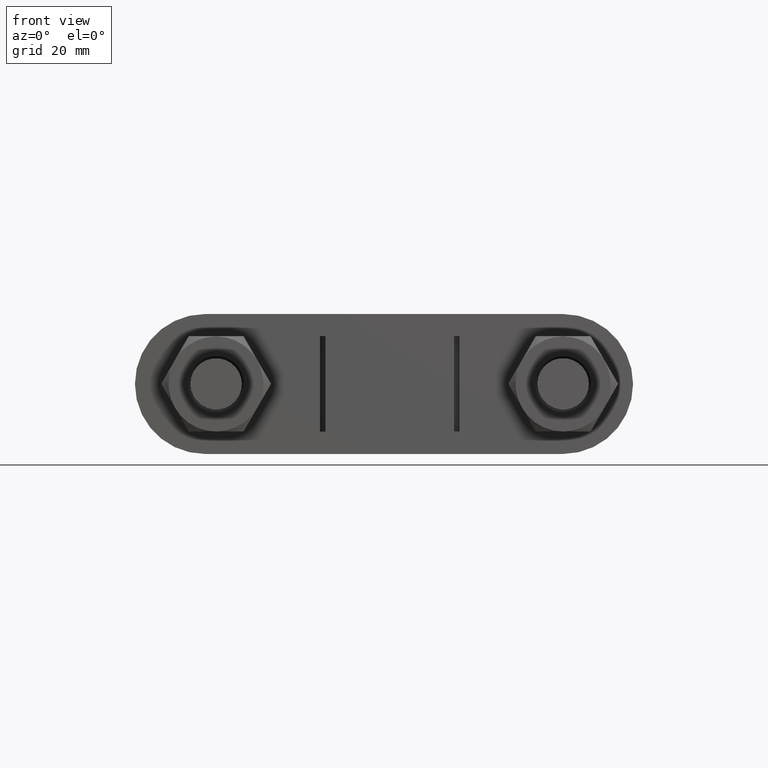
[diagram: clean part render]
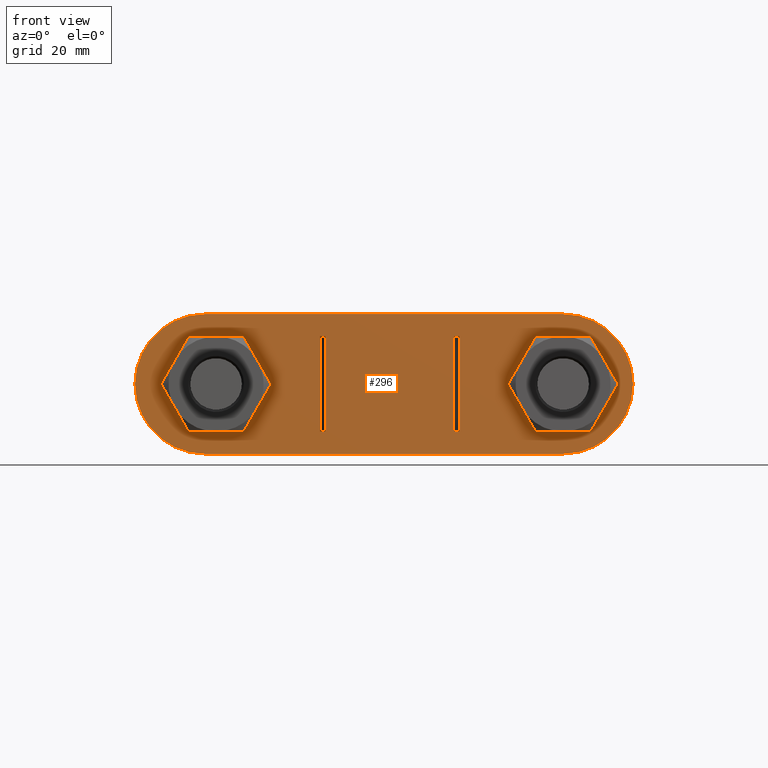
[diagram: same view with one face highlighted and labeled with its STEP entity id]
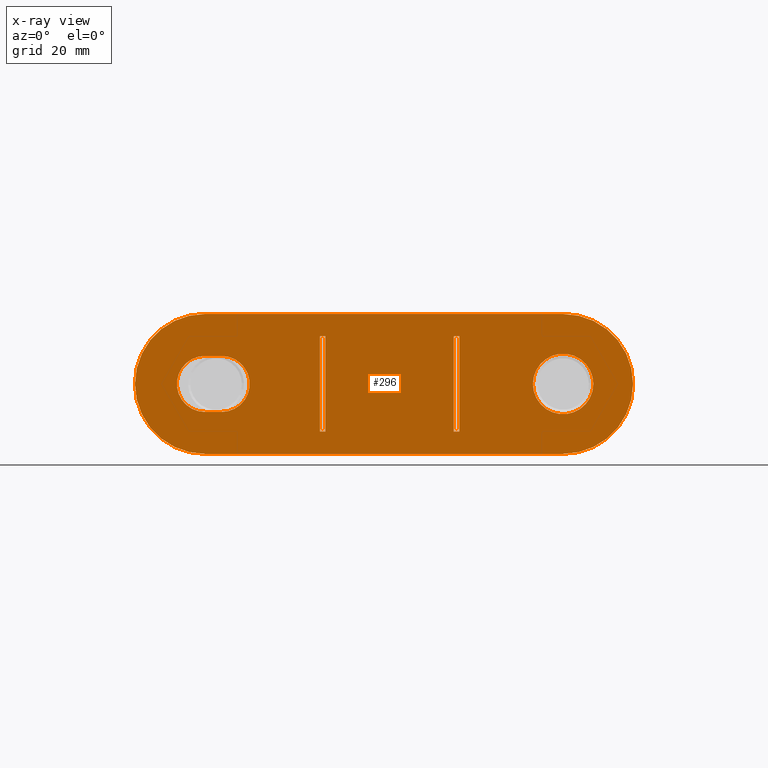
[diagram: x-ray of the same camera — body ghosted, the highlighted face saturated]
A machine part, front view. The second image highlights one B-rep face of the part: STEP entity #296.
The next image is the same camera in x-ray: the body ghosted, the highlighted face saturated — about 0% of this face is hidden behind the body in this view.
In plain terms, the highlighted planar face has unit normal (-0, 1, 0).
Its self-contained STEP definition (entity closure, byte-faithful):
#296 = ADVANCED_FACE( '', ( #445, #446, #447, #448, #449 ), #450, .F. );
#445 = FACE_BOUND( '', #1373, .T. );
#446 = FACE_OUTER_BOUND( '', #1374, .T. );
#447 = FACE_BOUND( '', #1375, .T. );
#448 = FACE_BOUND( '', #1376, .T. );
#449 = FACE_BOUND( '', #1377, .T. );
#450 = PLANE( '', #1378 );
#1373 = EDGE_LOOP( '', ( #1748, #1749, #1750, #1751 ) );
#1374 = EDGE_LOOP( '', ( #1752, #1753, #1754, #1755, #1756, #1757 ) );
#1375 = EDGE_LOOP( '', ( #1758 ) );
#1376 = EDGE_LOOP( '', ( #1759, #1760, #1761, #1762 ) );
#1377 = EDGE_LOOP( '', ( #1763, #1764, #1765, #1766 ) );
#1378 = AXIS2_PLACEMENT_3D( '', #1767, #1768, #1769 );
#1748 = ORIENTED_EDGE( '', *, *, #2427, .F. );
#1749 = ORIENTED_EDGE( '', *, *, #2428, .T. );
#1750 = ORIENTED_EDGE( '', *, *, #2429, .T. );
#1751 = ORIENTED_EDGE( '', *, *, #2430, .F. );
#1752 = ORIENTED_EDGE( '', *, *, #2431, .F. );
#1753 = ORIENTED_EDGE( '', *, *, #2432, .F. );
#1754 = ORIENTED_EDGE( '', *, *, #2433, .F. );
#1755 = ORIENTED_EDGE( '', *, *, #2434, .F. );
#1756 = ORIENTED_EDGE( '', *, *, #2435, .F. );
#1757 = ORIENTED_EDGE( '', *, *, #2436, .F. );
#1758 = ORIENTED_EDGE( '', *, *, #2437, .T. );
#1759 = ORIENTED_EDGE( '', *, *, #2438, .F. );
#1760 = ORIENTED_EDGE( '', *, *, #2439, .F. );
#1761 = ORIENTED_EDGE( '', *, *, #2440, .F. );
#1762 = ORIENTED_EDGE( '', *, *, #2441, .F. );
#1763 = ORIENTED_EDGE( '', *, *, #2442, .T. );
#1764 = ORIENTED_EDGE( '', *, *, #2443, .T. );
#1765 = ORIENTED_EDGE( '', *, *, #2444, .F. );
#1766 = ORIENTED_EDGE( '', *, *, #2445, .F. );
#1767 = CARTESIAN_POINT( '', ( -33.0000000000001, 29.1999999999912, 3.74627066098894E-007 ) );
#1768 = DIRECTION( '', ( -2.57567788524008E-013, 1.00000000000000, 2.67213857002862E-013 ) );
#1769 = DIRECTION( '', ( 1.13523593026117E-008, -2.67213854078860E-013, 1.00000000000000 ) );
#2427 = EDGE_CURVE( '', #2693, #2694, #2695, .T. );
#2428 = EDGE_CURVE( '', #2693, #2696, #2697, .T. );
#2429 = EDGE_CURVE( '', #2696, #2698, #2699, .T. );
#2430 = EDGE_CURVE( '', #2694, #2698, #2700, .T. );
#2431 = EDGE_CURVE( '', #2701, #2702, #2703, .T. );
#2432 = EDGE_CURVE( '', #2704, #2701, #2705, .T. );
#2433 = EDGE_CURVE( '', #2706, #2704, #2707, .T. );
#2434 = EDGE_CURVE( '', #2708, #2706, #2709, .T. );
#2435 = EDGE_CURVE( '', #2710, #2708, #2711, .T. );
#2436 = EDGE_CURVE( '', #2702, #2710, #2712, .T. );
#2437 = EDGE_CURVE( '', #2713, #2713, #2714, .T. );
#2438 = EDGE_CURVE( '', #2715, #2716, #2717, .T. );
#2439 = EDGE_CURVE( '', #2718, #2715, #2719, .T. );
#2440 = EDGE_CURVE( '', #2720, #2718, #2721, .T. );
#2441 = EDGE_CURVE( '', #2716, #2720, #2722, .T. );
#2442 = EDGE_CURVE( '', #2723, #2724, #2725, .T. );
#2443 = EDGE_CURVE( '', #2724, #2726, #2727, .T. );
#2444 = EDGE_CURVE( '', #2728, #2726, #2729, .T. );
#2445 = EDGE_CURVE( '', #2723, #2728, #2730, .T. );
#2693 = VERTEX_POINT( '', #3312 );
#2694 = VERTEX_POINT( '', #3313 );
#2695 = LINE( '', #3314, #3315 );
#2696 = VERTEX_POINT( '', #3316 );
#2697 = LINE( '', #3317, #3318 );
#2698 = VERTEX_POINT( '', #3319 );
#2699 = LINE( '', #3320, #3321 );
#2700 = LINE( '', #3322, #3323 );
#2701 = VERTEX_POINT( '', #3324 );
#2702 = VERTEX_POINT( '', #3325 );
#2703 = CIRCLE( '', #3326, 12.5000000000001 );
#2704 = VERTEX_POINT( '', #3327 );
#2705 = CIRCLE( '', #3328, 12.5000000000025 );
#2706 = VERTEX_POINT( '', #3329 );
#2707 = LINE( '', #3330, #3331 );
#2708 = VERTEX_POINT( '', #3332 );
#2709 = CIRCLE( '', #3333, 12.5000000000002 );
#2710 = VERTEX_POINT( '', #3334 );
#2711 = CIRCLE( '', #3335, 12.5000000000025 );
#2712 = LINE( '', #3336, #3337 );
#2713 = VERTEX_POINT( '', #3338 );
#2714 = CIRCLE( '', #3339, 5.40000000000006 );
#2715 = VERTEX_POINT( '', #3340 );
#2716 = VERTEX_POINT( '', #3341 );
#2717 = CIRCLE( '', #3342, 5.00000000000100 );
#2718 = VERTEX_POINT( '', #3343 );
#2719 = LINE( '', #3344, #3345 );
#2720 = VERTEX_POINT( '', #3346 );
#2721 = CIRCLE( '', #3347, 5.00000000000100 );
#2722 = LINE( '', #3348, #3349 );
#2723 = VERTEX_POINT( '', #3350 );
#2724 = VERTEX_POINT( '', #3351 );
#2725 = LINE( '', #3352, #3353 );
#2726 = VERTEX_POINT( '', #3354 );
#2727 = LINE( '', #3355, #3356 );
#2728 = VERTEX_POINT( '', #3357 );
#2729 = LINE( '', #3358, #3359 );
#2730 = LINE( '', #3360, #3361 );
#3312 = CARTESIAN_POINT( '', ( -12.4500000964949, 29.1999999999988, -8.49999985866562 ) );
#3313 = CARTESIAN_POINT( '', ( -11.4500000964949, 29.1999999999990, -8.49999987001798 ) );
#3314 = CARTESIAN_POINT( '', ( -12.4500000964949, 29.1999999999988, -8.49999985866562 ) );
#3315 = VECTOR( '', #3975, 999.999999999878 );
#3316 = CARTESIAN_POINT( '', ( -12.4499999035048, 29.1999999999942, 8.50000014133778 ) );
#3317 = CARTESIAN_POINT( '', ( -12.4500000964949, 29.1999999999988, -8.49999985866562 ) );
#3318 = VECTOR( '', #3976, 1000.00000000007 );
#3319 = CARTESIAN_POINT( '', ( -11.4499999035048, 29.1999999999945, 8.50000012998542 ) );
#3320 = CARTESIAN_POINT( '', ( -12.4499999035048, 29.1999999999942, 8.50000014133778 ) );
#3321 = VECTOR( '', #3977, 999.999999999878 );
#3322 = CARTESIAN_POINT( '', ( -11.4500000964949, 29.1999999999990, -8.49999987001798 ) );
#3323 = VECTOR( '', #3978, 1000.00000000007 );
#3324 = CARTESIAN_POINT( '', ( -45.5000000000002, 29.1999999999880, 5.16531553912094E-007 ) );
#3325 = CARTESIAN_POINT( '', ( -32.9999998580956, 29.1999999999879, 12.5000003746296 ) );
#3326 = AXIS2_PLACEMENT_3D( '', #3979, #3980, #3981 );
#3327 = CARTESIAN_POINT( '', ( -33.0000001419046, 29.1999999999946, -12.4999996253754 ) );
#3328 = AXIS2_PLACEMENT_3D( '', #3982, #3983, #3984 );
#3329 = CARTESIAN_POINT( '', ( 30.9999998580962, 29.2000000000110, -12.5000003519264 ) );
#3330 = CARTESIAN_POINT( '', ( 30.9999998580962, 29.2000000000110, -12.5000003519264 ) );
#3331 = VECTOR( '', #3985, 999.999999999878 );
#3332 = CARTESIAN_POINT( '', ( 43.5000000000008, 29.2000000000109, -4.93828420550911E-007 ) );
#3333 = AXIS2_PLACEMENT_3D( '', #3986, #3987, #3988 );
#3334 = CARTESIAN_POINT( '', ( 31.0000001419052, 29.2000000000044, 12.4999996480786 ) );
#3335 = AXIS2_PLACEMENT_3D( '', #3989, #3990, #3991 );
#3336 = CARTESIAN_POINT( '', ( -32.9999998580956, 29.1999999999879, 12.5000003746296 ) );
#3337 = VECTOR( '', #3992, 999.999999999878 );
#3338 = CARTESIAN_POINT( '', ( 36.4000000000007, 29.2000000000091, -4.13226667767644E-007 ) );
#3339 = AXIS2_PLACEMENT_3D( '', #3993, #3994, #3995 );
#3340 = CARTESIAN_POINT( '', ( -32.9999999432383, 29.1999984999217, 5.00000037462807 ) );
#3341 = CARTESIAN_POINT( '', ( -33.0000000567619, 29.1999984999243, -4.99999962537393 ) );
#3342 = AXIS2_PLACEMENT_3D( '', #3996, #3997, #3998 );
#3343 = CARTESIAN_POINT( '', ( -29.9999999432382, 29.1999984999224, 5.00000034057099 ) );
#3344 = CARTESIAN_POINT( '', ( -29.9999999432382, 29.1999984999224, 5.00000034057099 ) );
#3345 = VECTOR( '', #3999, 999.999999999878 );
#3346 = CARTESIAN_POINT( '', ( -30.0000000567618, 29.1999984999251, -4.99999965943101 ) );
#3347 = AXIS2_PLACEMENT_3D( '', #4000, #4001, #4002 );
#3348 = CARTESIAN_POINT( '', ( -33.0000000567619, 29.1999984999243, -4.99999962537393 ) );
#3349 = VECTOR( '', #4003, 999.999999999878 );
#3350 = CARTESIAN_POINT( '', ( 12.4499999035054, 29.2000000000052, -8.50000014133937 ) );
#3351 = CARTESIAN_POINT( '', ( 11.4499999035054, 29.2000000000049, -8.50000012998701 ) );
#3352 = CARTESIAN_POINT( '', ( 12.4499999035054, 29.2000000000052, -8.50000014133937 ) );
#3353 = VECTOR( '', #4004, 999.999999999878 );
#3354 = CARTESIAN_POINT( '', ( 11.4500000964955, 29.2000000000004, 8.49999987001639 ) );
#3355 = CARTESIAN_POINT( '', ( 11.4499999035054, 29.2000000000049, -8.50000012998701 ) );
#3356 = VECTOR( '', #4005, 1000.00000000007 );
#3357 = CARTESIAN_POINT( '', ( 12.4500000964955, 29.2000000000007, 8.49999985866403 ) );
#3358 = CARTESIAN_POINT( '', ( 12.4500000964955, 29.2000000000007, 8.49999985866403 ) );
#3359 = VECTOR( '', #4006, 999.999999999878 );
#3360 = CARTESIAN_POINT( '', ( 12.4499999035054, 29.2000000000052, -8.50000014133937 ) );
#3361 = VECTOR( '', #4007, 1000.00000000007 );
#3975 = DIRECTION( '', ( 1.00000000000000, 2.57567791557516E-013, -1.13523593026117E-008 ) );
#3976 = DIRECTION( '', ( 1.13523594629792E-008, -2.66936089419753E-013, 1.00000000000000 ) );
#3977 = DIRECTION( '', ( 1.00000000000000, 2.57567791557516E-013, -1.13523593026117E-008 ) );
#3978 = DIRECTION( '', ( 1.13523594629792E-008, -2.66936089419753E-013, 1.00000000000000 ) );
#3979 = CARTESIAN_POINT( '', ( -33.0000000000001, 29.1999999999912, 3.74627066098894E-007 ) );
#3980 = DIRECTION( '', ( -2.57567788524008E-013, 1.00000000000000, 2.67213857002862E-013 ) );
#3981 = DIRECTION( '', ( -1.00000000000000, -2.57567791557516E-013, 1.13523591638338E-008 ) );
#3982 = CARTESIAN_POINT( '', ( -33.0000000000001, 29.1999999999912, 3.74627069568341E-007 ) );
#3983 = DIRECTION( '', ( -2.57567788524008E-013, 1.00000000000000, 2.67213857002862E-013 ) );
#3984 = DIRECTION( '', ( -1.13523587475002E-008, 2.67213854078860E-013, -1.00000000000000 ) );
#3985 = DIRECTION( '', ( -1.00000000000000, -2.57567791557516E-013, 1.13523593026117E-008 ) );
#3986 = CARTESIAN_POINT( '', ( 31.0000000000007, 29.2000000000077, -3.51923925798816E-007 ) );
#3987 = DIRECTION( '', ( -2.57567788524008E-013, 1.00000000000000, 2.67213857002862E-013 ) );
#3988 = DIRECTION( '', ( 1.00000000000000, 2.57567791557516E-013, -1.13523591638338E-008 ) );
#3989 = CARTESIAN_POINT( '', ( 31.0000000000007, 29.2000000000077, -3.51923929268263E-007 ) );
#3990 = DIRECTION( '', ( -2.57567788524008E-013, 1.00000000000000, 2.67213857002862E-013 ) );
#3991 = DIRECTION( '', ( 1.13523593026117E-008, -2.67213854078860E-013, 1.00000000000000 ) );
#3992 = DIRECTION( '', ( 1.00000000000000, 2.57567791557516E-013, -1.13523593026117E-008 ) );
#3993 = CARTESIAN_POINT( '', ( 31.0000000000007, 29.2000000000077, -3.51923927533540E-007 ) );
#3994 = DIRECTION( '', ( -2.57567788524008E-013, 1.00000000000000, 2.67213857002862E-013 ) );
#3995 = DIRECTION( '', ( 1.00000000000000, 2.57567791557516E-013, -1.13523593026117E-008 ) );
#3996 = CARTESIAN_POINT( '', ( -33.0000000000001, 29.1999984999230, 3.74627067833216E-007 ) );
#3997 = DIRECTION( '', ( 2.57567788524008E-013, -1.00000000000000, -2.67213857002862E-013 ) );
#3998 = DIRECTION( '', ( 1.13523593026117E-008, -2.67213854078860E-013, 1.00000000000000 ) );
#3999 = DIRECTION( '', ( -1.00000000000000, -2.57567791557516E-013, 1.13523593026117E-008 ) );
#4000 = CARTESIAN_POINT( '', ( -30.0000000000000, 29.1999984999238, 3.40569989925381E-007 ) );
#4001 = DIRECTION( '', ( 2.57567788524008E-013, -1.00000000000000, -2.67213857002862E-013 ) );
#4002 = DIRECTION( '', ( -1.13523593026117E-008, 2.67213854078860E-013, -1.00000000000000 ) );
#4003 = DIRECTION( '', ( 1.00000000000000, 2.57567791557516E-013, -1.13523593026117E-008 ) );
#4004 = DIRECTION( '', ( -1.00000000000000, -2.57445330922134E-013, 1.13523593026117E-008 ) );
#4005 = DIRECTION( '', ( 1.13523591422442E-008, -2.66936089419753E-013, 1.00000000000000 ) );
#4006 = DIRECTION( '', ( -1.00000000000000, -2.57445330922134E-013, 1.13523593026117E-008 ) );
#4007 = DIRECTION( '', ( 1.13523591422442E-008, -2.66936089419753E-013, 1.00000000000000 ) );